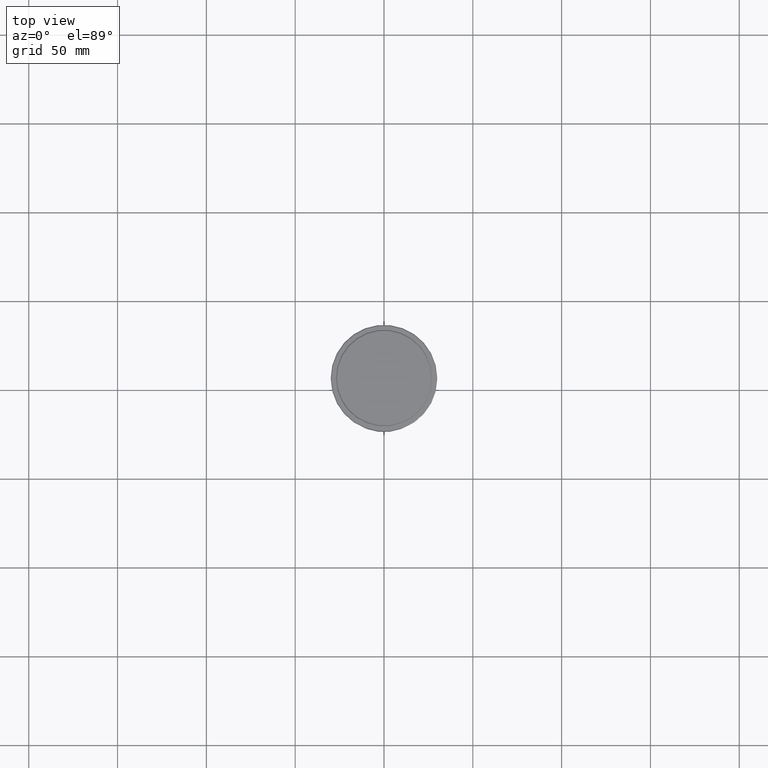
[diagram: clean part render]
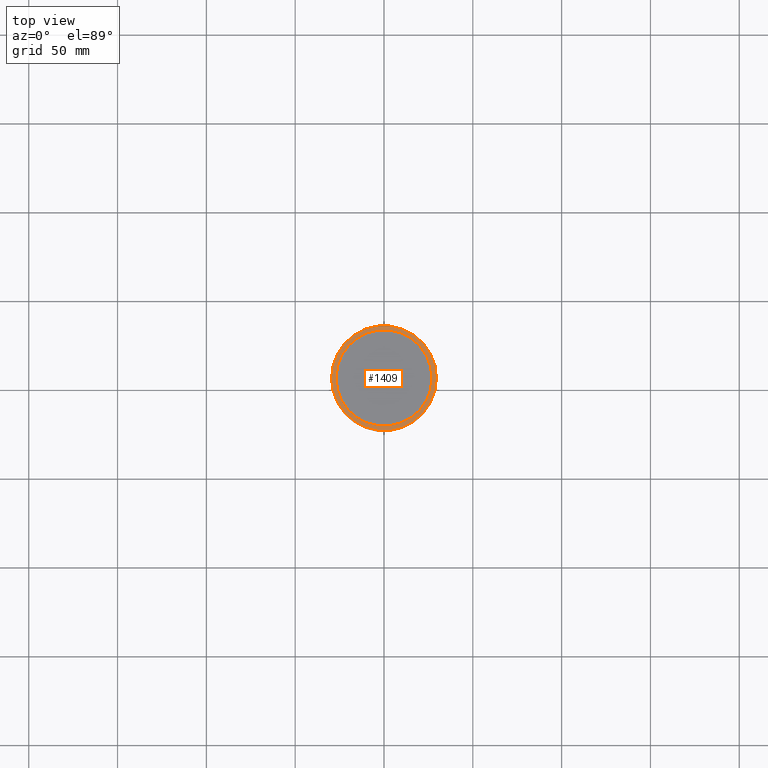
[diagram: same view with one face highlighted and labeled with its STEP entity id]
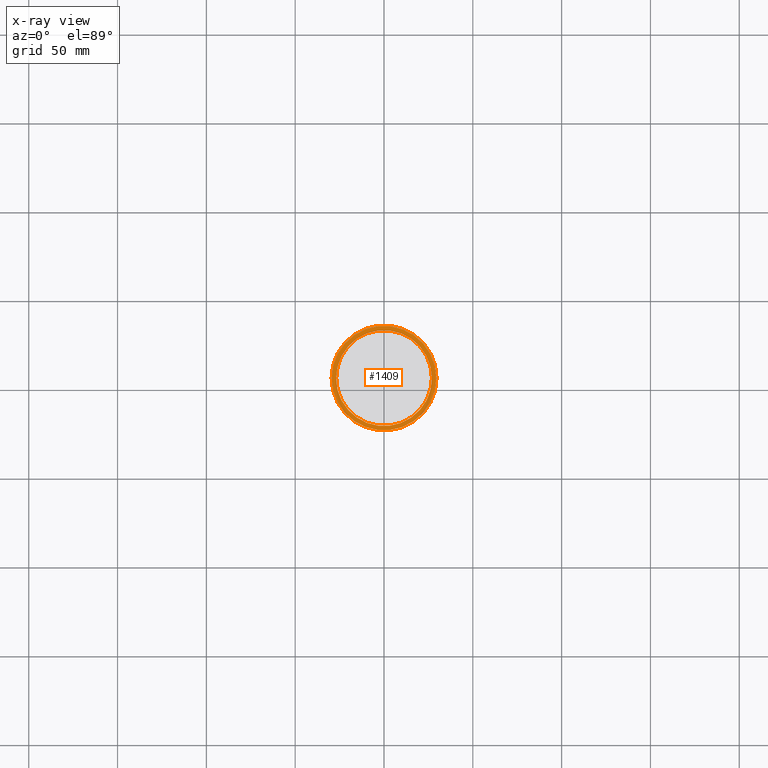
[diagram: x-ray of the same camera — body ghosted, the highlighted face saturated]
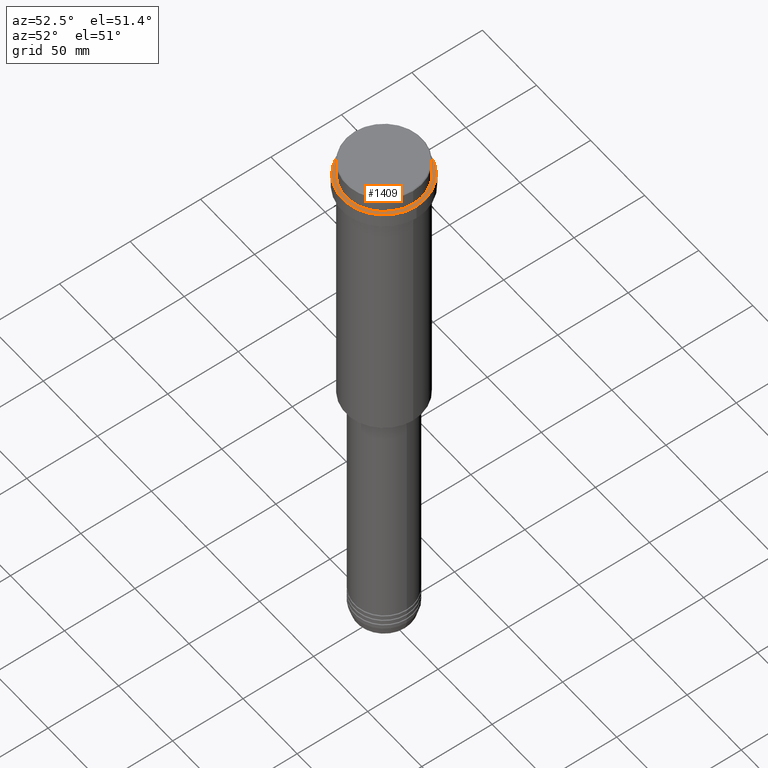
[diagram: same view with one face highlighted and labeled with its STEP entity id]
A machine part, top view. The second image highlights one B-rep face of the part: STEP entity #1409.
The next image is the same camera in x-ray: the body ghosted, the highlighted face saturated — about 0% of this face is hidden behind the body in this view.
A second angle (auxiliary view) of the same face is appended — the face is thin or edge-on in the first view.
In plain terms, the highlighted planar face has unit normal (0, -0, 1).
Its self-contained STEP definition (entity closure, byte-faithful):
#19 = DIRECTION ( 'NONE',  ( 1.000000000000000000, 0.000000000000000000, 0.000000000000000000 ) ) ;
#42 = VERTEX_POINT ( 'NONE', #609 ) ;
#55 = DIRECTION ( 'NONE',  ( 0.000000000000000000, -0.000000000000000000, 1.000000000000000000 ) ) ;
#123 = EDGE_CURVE ( 'NONE', #579, #246, #647, .T. ) ;
#159 = DIRECTION ( 'NONE',  ( 1.000000000000000000, 0.000000000000000000, 0.000000000000000000 ) ) ;
#246 = VERTEX_POINT ( 'NONE', #345 ) ;
#332 = EDGE_CURVE ( 'NONE', #42, #850, #991, .T. ) ;
#345 = CARTESIAN_POINT ( 'NONE',  ( 29.50000000000002487, 3.643324227463376968E-15, -12.00000000000000178 ) ) ;
#349 = AXIS2_PLACEMENT_3D ( 'NONE', #1086, #641, #1181 ) ;
#364 = FACE_OUTER_BOUND ( 'NONE', #1145, .T. ) ;
#381 = CARTESIAN_POINT ( 'NONE',  ( 0.000000000000000000, 26.49999999999999645, -12.00000000000000178 ) ) ;
#412 = DIRECTION ( 'NONE',  ( -0.000000000000000000, -0.000000000000000000, 1.000000000000000000 ) ) ;
#518 = CARTESIAN_POINT ( 'NONE',  ( -29.50000000000002487, 0.000000000000000000, -12.00000000000000178 ) ) ;
#564 = EDGE_LOOP ( 'NONE', ( #1150, #726 ) ) ;
#579 = VERTEX_POINT ( 'NONE', #518 ) ;
#609 = CARTESIAN_POINT ( 'NONE',  ( 26.99999999999999289, 0.000000000000000000, -12.00000000000000178 ) ) ;
#641 = DIRECTION ( 'NONE',  ( 0.000000000000000000, 0.000000000000000000, -1.000000000000000000 ) ) ;
#647 = CIRCLE ( 'NONE', #763, 29.50000000000002487 ) ;
#666 = DIRECTION ( 'NONE',  ( -0.000000000000000000, -0.000000000000000000, 1.000000000000000000 ) ) ;
#679 = EDGE_CURVE ( 'NONE', #246, #579, #842, .T. ) ;
#708 = ORIENTED_EDGE ( 'NONE', *, *, #679, .T. ) ;
#709 = PLANE ( 'NONE',  #1201 ) ;
#726 = ORIENTED_EDGE ( 'NONE', *, *, #994, .T. ) ;
#739 = AXIS2_PLACEMENT_3D ( 'NONE', #1325, #996, #19 ) ;
#763 = AXIS2_PLACEMENT_3D ( 'NONE', #1391, #412, #844 ) ;
#804 = FACE_BOUND ( 'NONE', #564, .T. ) ;
#842 = CIRCLE ( 'NONE', #1096, 29.50000000000002487 ) ;
#844 = DIRECTION ( 'NONE',  ( 1.000000000000000000, 0.000000000000000000, 0.000000000000000000 ) ) ;
#850 = VERTEX_POINT ( 'NONE', #1276 ) ;
#884 = CARTESIAN_POINT ( 'NONE',  ( 0.000000000000000000, 0.000000000000000000, -12.00000000000000178 ) ) ;
#887 = ORIENTED_EDGE ( 'NONE', *, *, #123, .T. ) ;
#991 = CIRCLE ( 'NONE', #739, 26.99999999999999289 ) ;
#994 = EDGE_CURVE ( 'NONE', #850, #42, #1360, .T. ) ;
#996 = DIRECTION ( 'NONE',  ( 0.000000000000000000, 0.000000000000000000, -1.000000000000000000 ) ) ;
#1086 = CARTESIAN_POINT ( 'NONE',  ( 0.000000000000000000, 0.000000000000000000, -12.00000000000000178 ) ) ;
#1096 = AXIS2_PLACEMENT_3D ( 'NONE', #884, #666, #1208 ) ;
#1145 = EDGE_LOOP ( 'NONE', ( #887, #708 ) ) ;
#1150 = ORIENTED_EDGE ( 'NONE', *, *, #332, .T. ) ;
#1181 = DIRECTION ( 'NONE',  ( 1.000000000000000000, 0.000000000000000000, 0.000000000000000000 ) ) ;
#1201 = AXIS2_PLACEMENT_3D ( 'NONE', #381, #55, #159 ) ;
#1208 = DIRECTION ( 'NONE',  ( 1.000000000000000000, 0.000000000000000000, 0.000000000000000000 ) ) ;
#1276 = CARTESIAN_POINT ( 'NONE',  ( -26.99999999999999289, 3.306546357697852944E-15, -12.00000000000000178 ) ) ;
#1325 = CARTESIAN_POINT ( 'NONE',  ( 0.000000000000000000, 0.000000000000000000, -12.00000000000000178 ) ) ;
#1360 = CIRCLE ( 'NONE', #349, 26.99999999999999289 ) ;
#1391 = CARTESIAN_POINT ( 'NONE',  ( 0.000000000000000000, 0.000000000000000000, -12.00000000000000178 ) ) ;
#1409 = ADVANCED_FACE ( 'NONE', ( #364, #804 ), #709, .T. ) ;